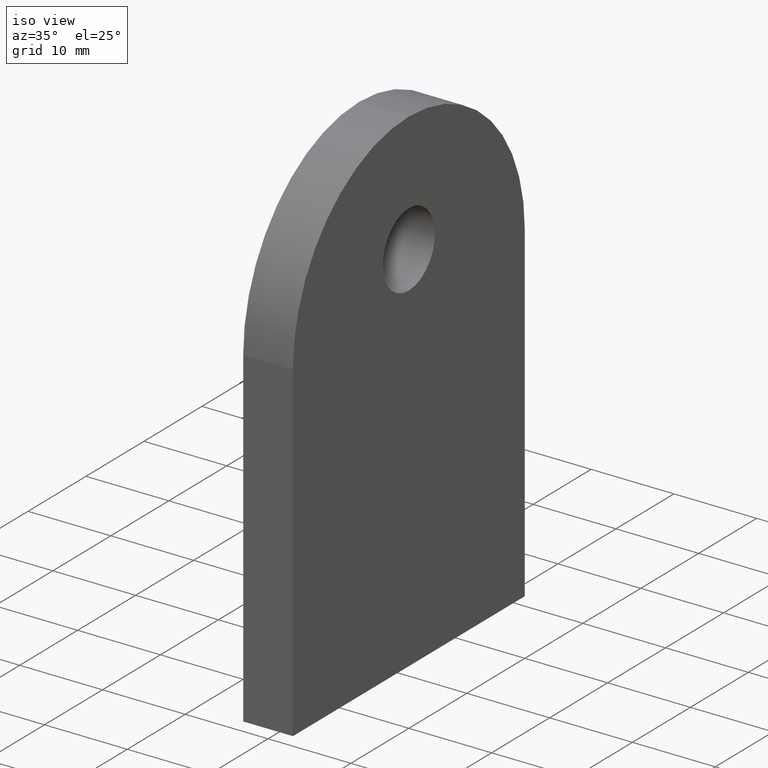
[diagram: clean part render]
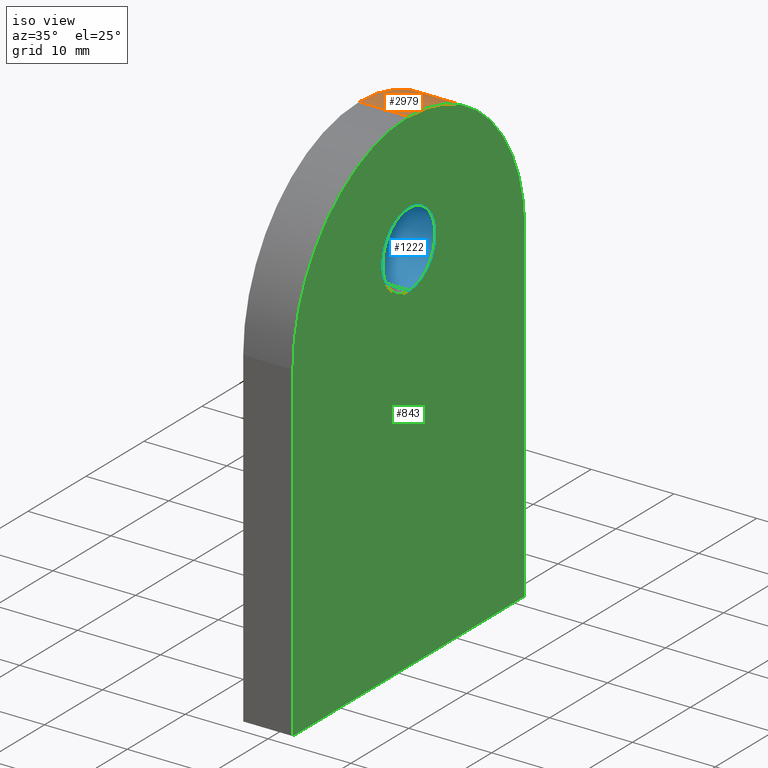
[diagram: same view with three faces highlighted in distinct colors, each labeled with its STEP entity id]
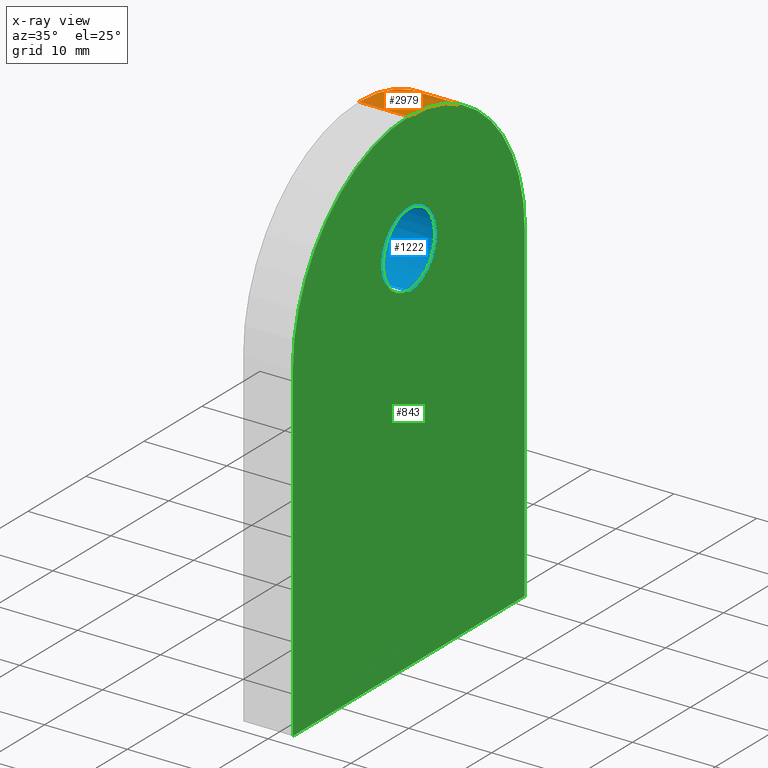
[diagram: x-ray of the same camera — body ghosted, the three highlighted faces saturated]
A machine part, iso view with three faces highlighted in distinct colors.
The next image is the same camera in x-ray (body ghosted, the three faces saturated) — at least one of them is partly hidden behind the body in this view.
Their STEP definitions:

[orange] entity #2979 — the highlighted cylindrical surface (partial cylindrical patch) has radius 20 mm, axis along (-1, -0, -0).
#175 = DIRECTION ( 'NONE',  ( -1.000000000000000000, -0.0000000000000000000, 0.0000000000000000000 ) ) ;
#510 = LINE ( 'NONE', #2291, #779 ) ;
#779 = VECTOR ( 'NONE', #6481, 1000.000000000000000 ) ;
#861 = CARTESIAN_POINT ( 'NONE',  ( 3.000000000000000000, 0.0000000000000000000, 59.99999999999999300 ) ) ;
#1021 = DIRECTION ( 'NONE',  ( 0.0000000000000000000, 0.0000000000000000000, 1.000000000000000000 ) ) ;
#1219 = CYLINDRICAL_SURFACE ( 'NONE', #9464, 20.00000000000000400 ) ;
#1970 = VERTEX_POINT ( 'NONE', #5739 ) ;
#2041 = CARTESIAN_POINT ( 'NONE',  ( 3.000000000000000000, 20.00000000000000400, 39.99999999999998600 ) ) ;
#2065 = CARTESIAN_POINT ( 'NONE',  ( 3.000000000000000000, 20.00000000000000400, 39.99999999999998600 ) ) ;
#2183 = VERTEX_POINT ( 'NONE', #2065 ) ;
#2291 = CARTESIAN_POINT ( 'NONE',  ( 3.000000000000000000, 0.0000000000000000000, 59.99999999999999300 ) ) ;
#2671 = DIRECTION ( 'NONE',  ( -1.000000000000000000, -0.0000000000000000000, -0.0000000000000000000 ) ) ;
#2979 = ADVANCED_FACE ( 'NONE', ( #5181 ), #1219, .T. ) ;
#3076 = AXIS2_PLACEMENT_3D ( 'NONE', #4477, #175, #9465 ) ;
#3144 = DIRECTION ( 'NONE',  ( -1.000000000000000000, -0.0000000000000000000, 0.0000000000000000000 ) ) ;
#3206 = EDGE_CURVE ( 'NONE', #9823, #1970, #9377, .T. ) ;
#4035 = CARTESIAN_POINT ( 'NONE',  ( -3.000000000000000000, 0.0000000000000000000, 39.99999999999998600 ) ) ;
#4094 = VERTEX_POINT ( 'NONE', #861 ) ;
#4109 = CARTESIAN_POINT ( 'NONE',  ( -3.000000000000000000, 0.0000000000000000000, 59.99999999999999300 ) ) ;
#4477 = CARTESIAN_POINT ( 'NONE',  ( 3.000000000000000000, 0.0000000000000000000, 39.99999999999998600 ) ) ;
#5002 = ORIENTED_EDGE ( 'NONE', *, *, #3206, .F. ) ;
#5165 = EDGE_CURVE ( 'NONE', #4094, #9823, #510, .T. ) ;
#5181 = FACE_OUTER_BOUND ( 'NONE', #8929, .T. ) ;
#5416 = LINE ( 'NONE', #2041, #6718 ) ;
#5739 = CARTESIAN_POINT ( 'NONE',  ( -3.000000000000000000, 20.00000000000000400, 39.99999999999998600 ) ) ;
#6091 = CARTESIAN_POINT ( 'NONE',  ( 3.000000000000000000, 0.0000000000000000000, 39.99999999999998600 ) ) ;
#6199 = DIRECTION ( 'NONE',  ( -1.000000000000000000, -0.0000000000000000000, -0.0000000000000000000 ) ) ;
#6481 = DIRECTION ( 'NONE',  ( -1.000000000000000000, -0.0000000000000000000, -0.0000000000000000000 ) ) ;
#6718 = VECTOR ( 'NONE', #6199, 1000.000000000000000 ) ;
#8655 = ORIENTED_EDGE ( 'NONE', *, *, #9237, .T. ) ;
#8929 = EDGE_LOOP ( 'NONE', ( #9857, #8655, #10407, #5002 ) ) ;
#9237 = EDGE_CURVE ( 'NONE', #4094, #2183, #10228, .T. ) ;
#9377 = CIRCLE ( 'NONE', #10023, 20.00000000000000400 ) ;
#9464 = AXIS2_PLACEMENT_3D ( 'NONE', #6091, #2671, #1021 ) ;
#9465 = DIRECTION ( 'NONE',  ( 0.0000000000000000000, 0.0000000000000000000, 1.000000000000000000 ) ) ;
#9823 = VERTEX_POINT ( 'NONE', #4109 ) ;
#9857 = ORIENTED_EDGE ( 'NONE', *, *, #5165, .F. ) ;
#9953 = DIRECTION ( 'NONE',  ( 0.0000000000000000000, 0.0000000000000000000, 1.000000000000000000 ) ) ;
#10023 = AXIS2_PLACEMENT_3D ( 'NONE', #4035, #3144, #9953 ) ;
#10228 = CIRCLE ( 'NONE', #3076, 20.00000000000000400 ) ;
#10273 = EDGE_CURVE ( 'NONE', #2183, #1970, #5416, .T. ) ;
#10407 = ORIENTED_EDGE ( 'NONE', *, *, #10273, .T. ) ;

[blue] entity #1222 — the highlighted cylindrical surface (partial cylindrical patch) has radius 4.5 mm, axis along (1, -0, -0).
#93 = EDGE_CURVE ( 'NONE', #5138, #313, #6539, .T. ) ;
#278 = VECTOR ( 'NONE', #9353, 1000.000000000000000 ) ;
#313 = VERTEX_POINT ( 'NONE', #3109 ) ;
#685 = DIRECTION ( 'NONE',  ( 1.000000000000000000, -0.0000000000000000000, -0.0000000000000000000 ) ) ;
#1003 = CARTESIAN_POINT ( 'NONE',  ( -3.000000000000000000, 0.0000000000000000000, 40.99999999999998600 ) ) ;
#1222 = ADVANCED_FACE ( 'NONE', ( #4421 ), #3077, .F. ) ;
#1284 = CARTESIAN_POINT ( 'NONE',  ( -3.000000000000000000, 0.0000000000000000000, 45.49999999999999300 ) ) ;
#1694 = CARTESIAN_POINT ( 'NONE',  ( 3.000000000000000000, 0.0000000000000000000, 40.99999999999998600 ) ) ;
#1769 = CARTESIAN_POINT ( 'NONE',  ( 3.000000000000000000, 0.0000000000000000000, 45.49999999999999300 ) ) ;
#1845 = CARTESIAN_POINT ( 'NONE',  ( -3.000000000000000000, 5.510910596163095500E-016, 49.99999999999999300 ) ) ;
#2298 = DIRECTION ( 'NONE',  ( 0.0000000000000000000, 0.0000000000000000000, -1.000000000000000000 ) ) ;
#2516 = EDGE_CURVE ( 'NONE', #8883, #5138, #5986, .T. ) ;
#2684 = AXIS2_PLACEMENT_3D ( 'NONE', #4912, #685, #2298 ) ;
#3077 = CYLINDRICAL_SURFACE ( 'NONE', #2684, 4.500000000000003600 ) ;
#3109 = CARTESIAN_POINT ( 'NONE',  ( 3.000000000000000000, 5.510910596163096500E-016, 49.99999999999999300 ) ) ;
#3450 = EDGE_CURVE ( 'NONE', #8883, #4111, #4790, .T. ) ;
#3594 = DIRECTION ( 'NONE',  ( 1.000000000000000000, -0.0000000000000000000, -0.0000000000000000000 ) ) ;
#3833 = DIRECTION ( 'NONE',  ( 0.0000000000000000000, 0.0000000000000000000, -1.000000000000000000 ) ) ;
#4111 = VERTEX_POINT ( 'NONE', #1694 ) ;
#4170 = CIRCLE ( 'NONE', #5567, 4.500000000000003600 ) ;
#4421 = FACE_OUTER_BOUND ( 'NONE', #7875, .T. ) ;
#4635 = DIRECTION ( 'NONE',  ( 1.000000000000000000, 0.0000000000000000000, 0.0000000000000000000 ) ) ;
#4790 = LINE ( 'NONE', #1003, #278 ) ;
#4912 = CARTESIAN_POINT ( 'NONE',  ( -3.000000000000000000, 0.0000000000000000000, 45.49999999999999300 ) ) ;
#5115 = DIRECTION ( 'NONE',  ( 0.0000000000000000000, 0.0000000000000000000, -1.000000000000000000 ) ) ;
#5138 = VERTEX_POINT ( 'NONE', #7353 ) ;
#5322 = AXIS2_PLACEMENT_3D ( 'NONE', #1284, #4635, #3833 ) ;
#5396 = CARTESIAN_POINT ( 'NONE',  ( -3.000000000000000000, 0.0000000000000000000, 40.99999999999998600 ) ) ;
#5454 = ORIENTED_EDGE ( 'NONE', *, *, #2516, .F. ) ;
#5567 = AXIS2_PLACEMENT_3D ( 'NONE', #1769, #7636, #5115 ) ;
#5986 = CIRCLE ( 'NONE', #5322, 4.500000000000003600 ) ;
#6539 = LINE ( 'NONE', #1845, #6800 ) ;
#6800 = VECTOR ( 'NONE', #3594, 1000.000000000000000 ) ;
#7353 = CARTESIAN_POINT ( 'NONE',  ( -3.000000000000000000, 5.510910596163096500E-016, 49.99999999999999300 ) ) ;
#7636 = DIRECTION ( 'NONE',  ( 1.000000000000000000, 0.0000000000000000000, 0.0000000000000000000 ) ) ;
#7875 = EDGE_LOOP ( 'NONE', ( #10043, #5454, #9646, #10127 ) ) ;
#8883 = VERTEX_POINT ( 'NONE', #5396 ) ;
#9353 = DIRECTION ( 'NONE',  ( 1.000000000000000000, -0.0000000000000000000, -0.0000000000000000000 ) ) ;
#9646 = ORIENTED_EDGE ( 'NONE', *, *, #3450, .T. ) ;
#9833 = EDGE_CURVE ( 'NONE', #4111, #313, #4170, .T. ) ;
#10043 = ORIENTED_EDGE ( 'NONE', *, *, #93, .F. ) ;
#10127 = ORIENTED_EDGE ( 'NONE', *, *, #9833, .T. ) ;

[green] entity #843 — the highlighted planar face has unit normal (-1, -0, 0).
#144 = AXIS2_PLACEMENT_3D ( 'NONE', #9172, #8264, #5839 ) ;
#175 = DIRECTION ( 'NONE',  ( -1.000000000000000000, -0.0000000000000000000, 0.0000000000000000000 ) ) ;
#313 = VERTEX_POINT ( 'NONE', #3109 ) ;
#502 = CARTESIAN_POINT ( 'NONE',  ( 3.000000000000000000, 20.00000000000000400, 39.99999999999998600 ) ) ;
#722 = CARTESIAN_POINT ( 'NONE',  ( 3.000000000000000000, -20.00000000000000400, 39.99999999999998600 ) ) ;
#733 = DIRECTION ( 'NONE',  ( 0.0000000000000000000, 0.0000000000000000000, 1.000000000000000000 ) ) ;
#843 = ADVANCED_FACE ( 'NONE', ( #7972, #8755 ), #2683, .F. ) ;
#861 = CARTESIAN_POINT ( 'NONE',  ( 3.000000000000000000, 0.0000000000000000000, 59.99999999999999300 ) ) ;
#886 = DIRECTION ( 'NONE',  ( 0.0000000000000000000, -8.673617379884036700E-017, 1.000000000000000000 ) ) ;
#892 = ORIENTED_EDGE ( 'NONE', *, *, #9237, .F. ) ;
#1023 = EDGE_LOOP ( 'NONE', ( #1445, #1268 ) ) ;
#1268 = ORIENTED_EDGE ( 'NONE', *, *, #2372, .F. ) ;
#1297 = VECTOR ( 'NONE', #886, 1000.000000000000000 ) ;
#1445 = ORIENTED_EDGE ( 'NONE', *, *, #9833, .F. ) ;
#1555 = CARTESIAN_POINT ( 'NONE',  ( 3.000000000000000000, 20.00000000000000000, -4.286263797015736500E-015 ) ) ;
#1694 = CARTESIAN_POINT ( 'NONE',  ( 3.000000000000000000, 0.0000000000000000000, 40.99999999999998600 ) ) ;
#1700 = CARTESIAN_POINT ( 'NONE',  ( 3.000000000000000000, -20.00000000000000000, -4.286263797015736500E-015 ) ) ;
#1769 = CARTESIAN_POINT ( 'NONE',  ( 3.000000000000000000, 0.0000000000000000000, 45.49999999999999300 ) ) ;
#2065 = CARTESIAN_POINT ( 'NONE',  ( 3.000000000000000000, 20.00000000000000400, 39.99999999999998600 ) ) ;
#2129 = CIRCLE ( 'NONE', #144, 4.500000000000003600 ) ;
#2183 = VERTEX_POINT ( 'NONE', #2065 ) ;
#2372 = EDGE_CURVE ( 'NONE', #313, #4111, #2129, .T. ) ;
#2683 = PLANE ( 'NONE',  #4967 ) ;
#3076 = AXIS2_PLACEMENT_3D ( 'NONE', #4477, #175, #9465 ) ;
#3109 = CARTESIAN_POINT ( 'NONE',  ( 3.000000000000000000, 5.510910596163096500E-016, 49.99999999999999300 ) ) ;
#3438 = ORIENTED_EDGE ( 'NONE', *, *, #3571, .F. ) ;
#3571 = EDGE_CURVE ( 'NONE', #10103, #4094, #4248, .T. ) ;
#4077 = CARTESIAN_POINT ( 'NONE',  ( 3.000000000000000000, 20.00000000000000000, -4.286263797015736500E-015 ) ) ;
#4094 = VERTEX_POINT ( 'NONE', #861 ) ;
#4111 = VERTEX_POINT ( 'NONE', #1694 ) ;
#4170 = CIRCLE ( 'NONE', #5567, 4.500000000000003600 ) ;
#4248 = CIRCLE ( 'NONE', #5968, 20.00000000000000400 ) ;
#4253 = EDGE_CURVE ( 'NONE', #5633, #9109, #10947, .T. ) ;
#4322 = VECTOR ( 'NONE', #6415, 1000.000000000000000 ) ;
#4401 = CARTESIAN_POINT ( 'NONE',  ( 3.000000000000000000, 0.0000000000000000000, 39.99999999999998600 ) ) ;
#4477 = CARTESIAN_POINT ( 'NONE',  ( 3.000000000000000000, 0.0000000000000000000, 39.99999999999998600 ) ) ;
#4967 = AXIS2_PLACEMENT_3D ( 'NONE', #4401, #9200, #733 ) ;
#5115 = DIRECTION ( 'NONE',  ( 0.0000000000000000000, 0.0000000000000000000, -1.000000000000000000 ) ) ;
#5331 = DIRECTION ( 'NONE',  ( 0.0000000000000000000, 0.0000000000000000000, 1.000000000000000000 ) ) ;
#5536 = EDGE_CURVE ( 'NONE', #9109, #10103, #6851, .T. ) ;
#5567 = AXIS2_PLACEMENT_3D ( 'NONE', #1769, #7636, #5115 ) ;
#5633 = VERTEX_POINT ( 'NONE', #4077 ) ;
#5689 = CARTESIAN_POINT ( 'NONE',  ( 3.000000000000000000, -20.00000000000000000, -4.286263797015736500E-015 ) ) ;
#5839 = DIRECTION ( 'NONE',  ( 0.0000000000000000000, 0.0000000000000000000, -1.000000000000000000 ) ) ;
#5968 = AXIS2_PLACEMENT_3D ( 'NONE', #10450, #7014, #5331 ) ;
#6415 = DIRECTION ( 'NONE',  ( 0.0000000000000000000, -8.673617379884036700E-017, -1.000000000000000000 ) ) ;
#6851 = LINE ( 'NONE', #5689, #1297 ) ;
#6901 = EDGE_LOOP ( 'NONE', ( #3438, #10582, #8117, #10762, #892 ) ) ;
#7014 = DIRECTION ( 'NONE',  ( -1.000000000000000000, -0.0000000000000000000, 0.0000000000000000000 ) ) ;
#7337 = EDGE_CURVE ( 'NONE', #2183, #5633, #8278, .T. ) ;
#7636 = DIRECTION ( 'NONE',  ( 1.000000000000000000, 0.0000000000000000000, 0.0000000000000000000 ) ) ;
#7972 = FACE_BOUND ( 'NONE', #1023, .T. ) ;
#8058 = VECTOR ( 'NONE', #10081, 1000.000000000000000 ) ;
#8117 = ORIENTED_EDGE ( 'NONE', *, *, #4253, .F. ) ;
#8264 = DIRECTION ( 'NONE',  ( 1.000000000000000000, 0.0000000000000000000, 0.0000000000000000000 ) ) ;
#8278 = LINE ( 'NONE', #502, #4322 ) ;
#8755 = FACE_OUTER_BOUND ( 'NONE', #6901, .T. ) ;
#9109 = VERTEX_POINT ( 'NONE', #1700 ) ;
#9172 = CARTESIAN_POINT ( 'NONE',  ( 3.000000000000000000, 0.0000000000000000000, 45.49999999999999300 ) ) ;
#9200 = DIRECTION ( 'NONE',  ( -1.000000000000000000, -0.0000000000000000000, 0.0000000000000000000 ) ) ;
#9237 = EDGE_CURVE ( 'NONE', #4094, #2183, #10228, .T. ) ;
#9465 = DIRECTION ( 'NONE',  ( 0.0000000000000000000, 0.0000000000000000000, 1.000000000000000000 ) ) ;
#9833 = EDGE_CURVE ( 'NONE', #4111, #313, #4170, .T. ) ;
#10081 = DIRECTION ( 'NONE',  ( 0.0000000000000000000, -1.000000000000000000, 0.0000000000000000000 ) ) ;
#10103 = VERTEX_POINT ( 'NONE', #722 ) ;
#10228 = CIRCLE ( 'NONE', #3076, 20.00000000000000400 ) ;
#10450 = CARTESIAN_POINT ( 'NONE',  ( 3.000000000000000000, 0.0000000000000000000, 39.99999999999998600 ) ) ;
#10582 = ORIENTED_EDGE ( 'NONE', *, *, #5536, .F. ) ;
#10762 = ORIENTED_EDGE ( 'NONE', *, *, #7337, .F. ) ;
#10947 = LINE ( 'NONE', #1555, #8058 ) ;